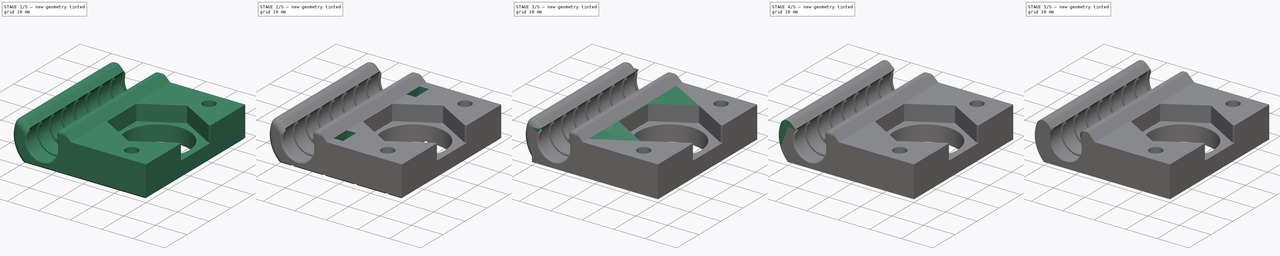
[diagram: build sequence overview — one tinted view per stage of 5, left to right]
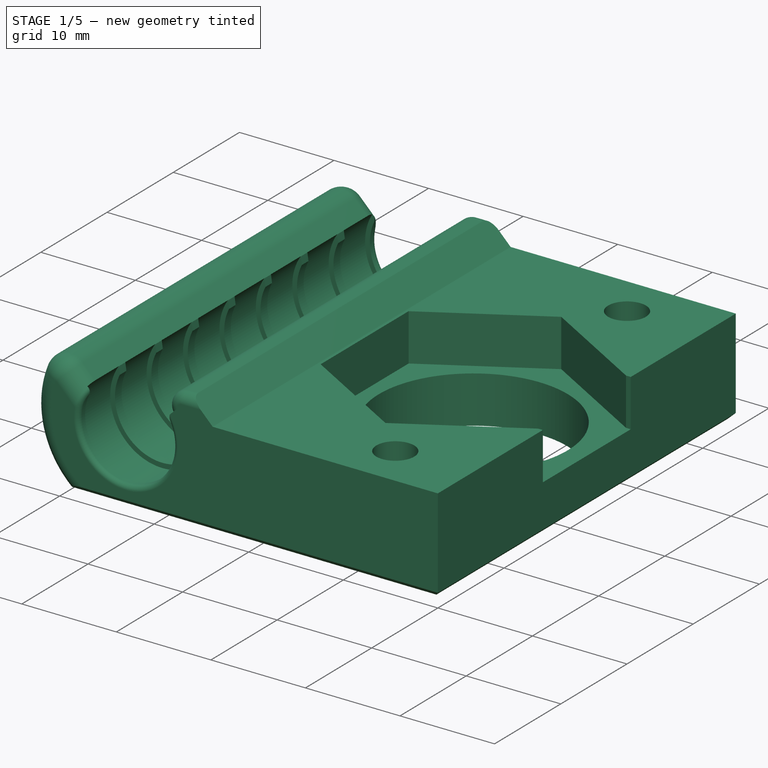
[diagram: stage 1 of 5 — iso view after this stage's code; geometry added in this stage tinted green]
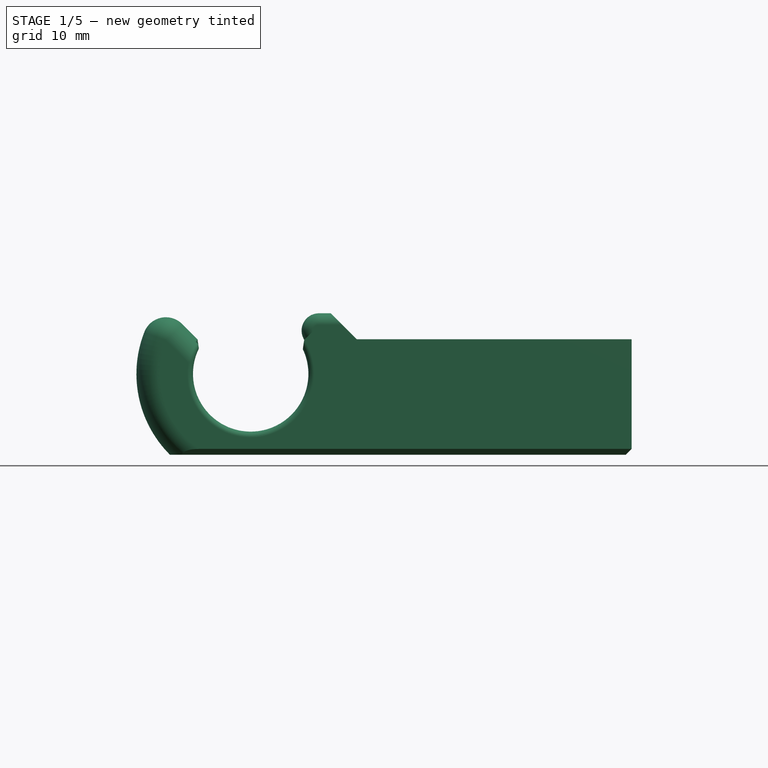
[diagram: stage 1 of 5 — front view after this stage's code; geometry added in this stage tinted green]
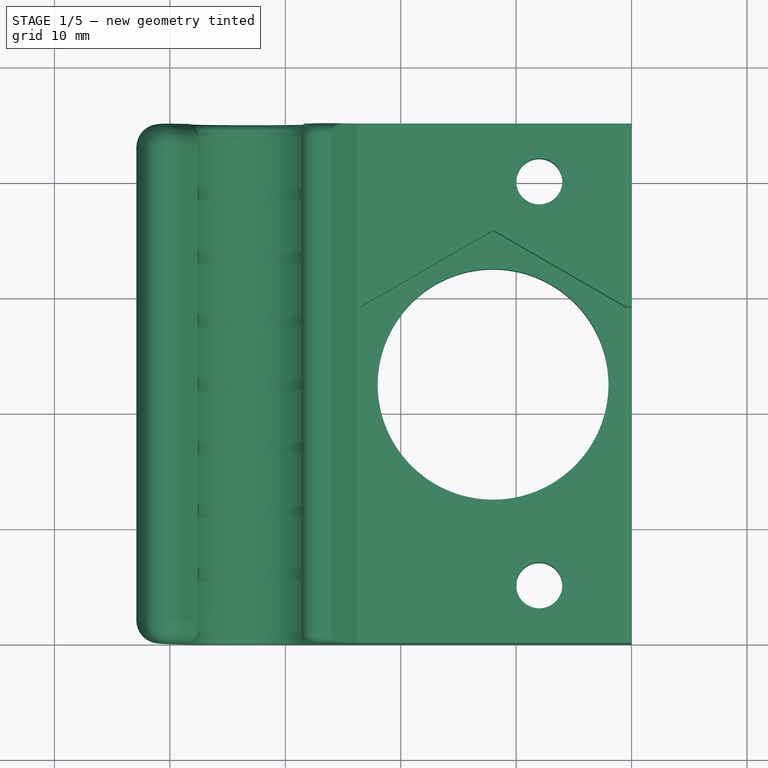
[diagram: stage 1 of 5 — top view after this stage's code; geometry added in this stage tinted green]
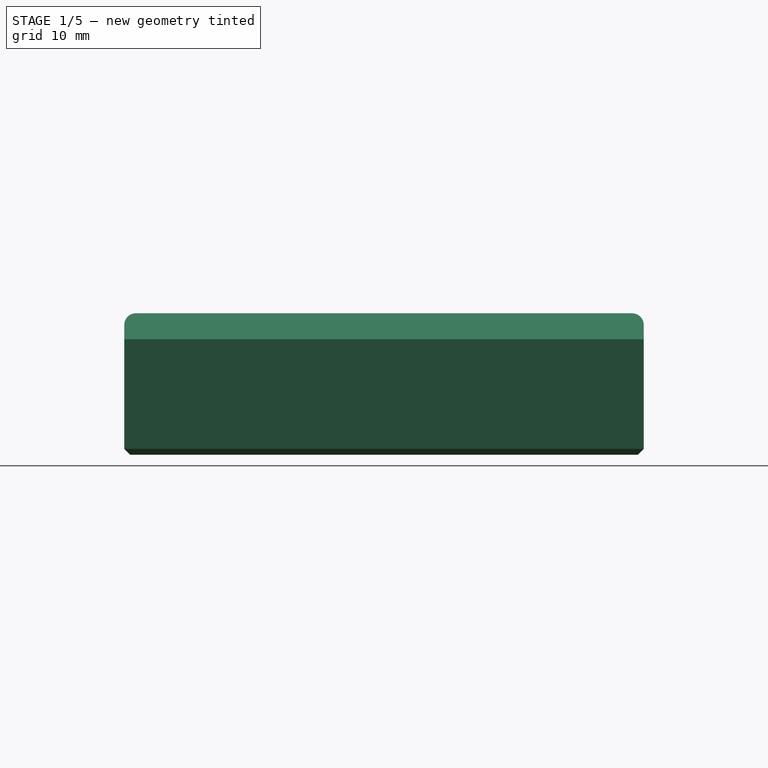
[diagram: stage 1 of 5 — right view after this stage's code; geometry added in this stage tinted green]
FCSTD DOCUMENT  (FreeCAD 0.16R5861 (Git))
Label: z-min_switch_mount_v4.1
License: All rights reserved
LicenseURL: http://en.wikipedia.org/wiki/All_rights_reserved
objects: Sketcher::SketchObject×10, PartDesign::Fillet×7, PartDesign::Pocket×6, PartDesign::Pad×4, PartDesign::Chamfer×4, PartDesign::LinearPattern×2, Part::Feature×1
note: 44 computed .brp shape members not serialized (recipe doc carries the construction recipe); baked Part::Feature solids carry a one-line shape summary decoded from their .brp

FEATURE [Part::Feature] Chamfer001001  label="Chamfer002"
  shape: bbox 42.9 x 45.09 x 12.25 mm, 84 faces (baked)
FEATURE [PartDesign::Chamfer] Chamfer001002
  Base = -> Chamfer001001 [Edge59,Edge57,Edge58]
  Size = 0.5
FEATURE [PartDesign::Fillet] Fillet003
  Base = -> Chamfer001002 [Edge1,Edge5]
  Radius = 2
FEATURE [PartDesign::Fillet] Fillet004
  Base = -> Fillet003 [Edge67,Edge78]
  Radius = 1
FEATURE [PartDesign::Fillet] Fillet005
  Base = -> Fillet004 [Edge68,Edge12]
  Radius = 0.5
FEATURE [Sketcher::SketchObject] Sketch007
  ExternalGeometry = -> [Fillet005]
  Placement = pos=(0,0,0) rot=(1,0,0;3.14159rad)
  Support = -> Fillet005 [Face19]
  sketch-geometry (2):
    g0: Circle CenterX=32 CenterY=-5 CenterZ=0 NormalX=0 NormalY=0 NormalZ=1 Radius=4
    g1: Circle CenterX=32 CenterY=-40 CenterZ=0 NormalX=0 NormalY=0 NormalZ=1 Radius=4
  constraints (4):
    c: Coincident(g0,g-3)
    c: Coincident(g1,g-5)
    c: Equal(g1,g-5)
    c: Equal(g-5,g0)
FEATURE [PartDesign::Pocket] Pocket003
  Length = 4
  Sketch = -> Sketch007
  Type = 0
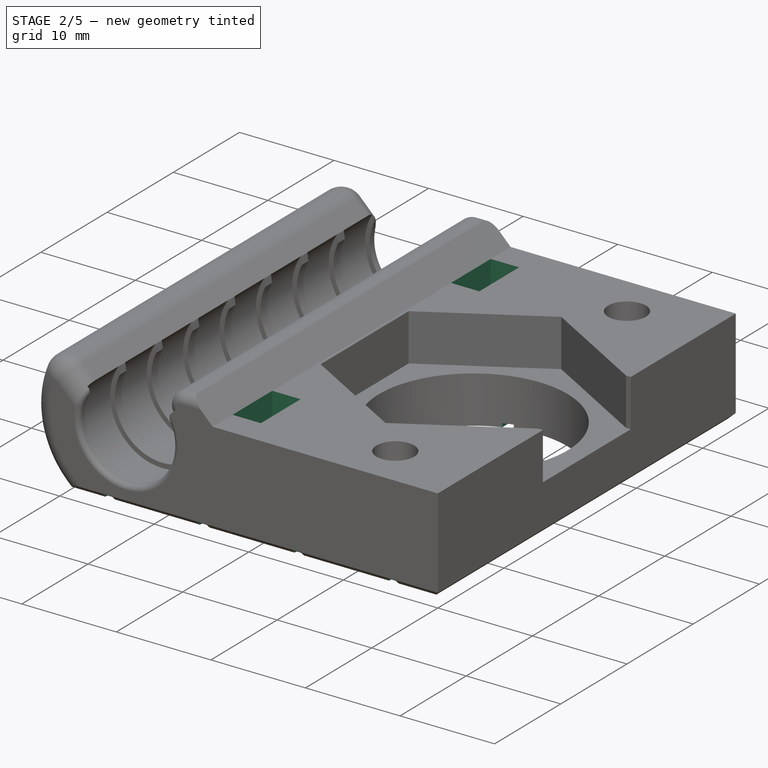
[diagram: stage 2 of 5 — iso view after this stage's code; geometry added in this stage tinted green]
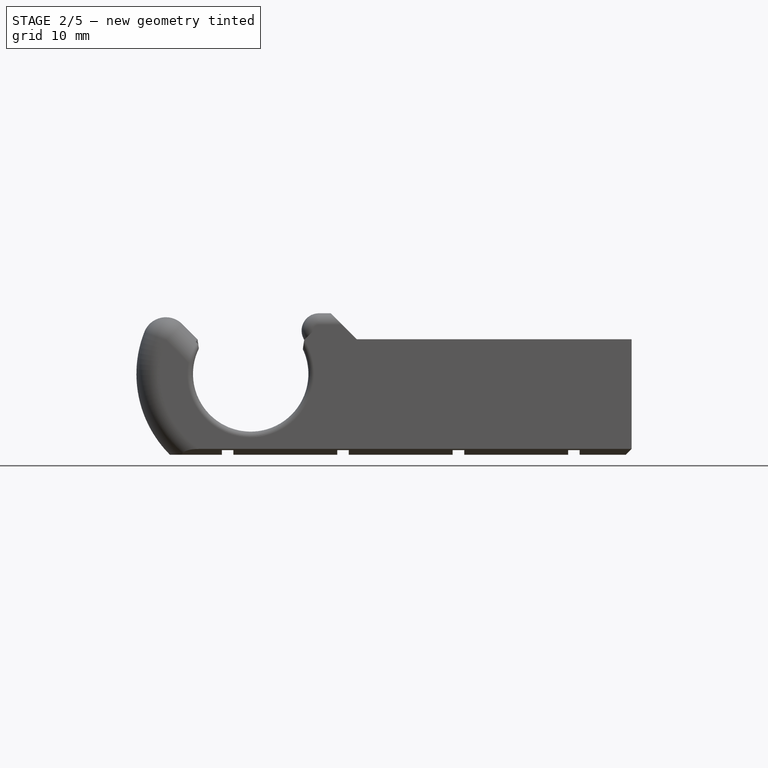
[diagram: stage 2 of 5 — front view after this stage's code; geometry added in this stage tinted green]
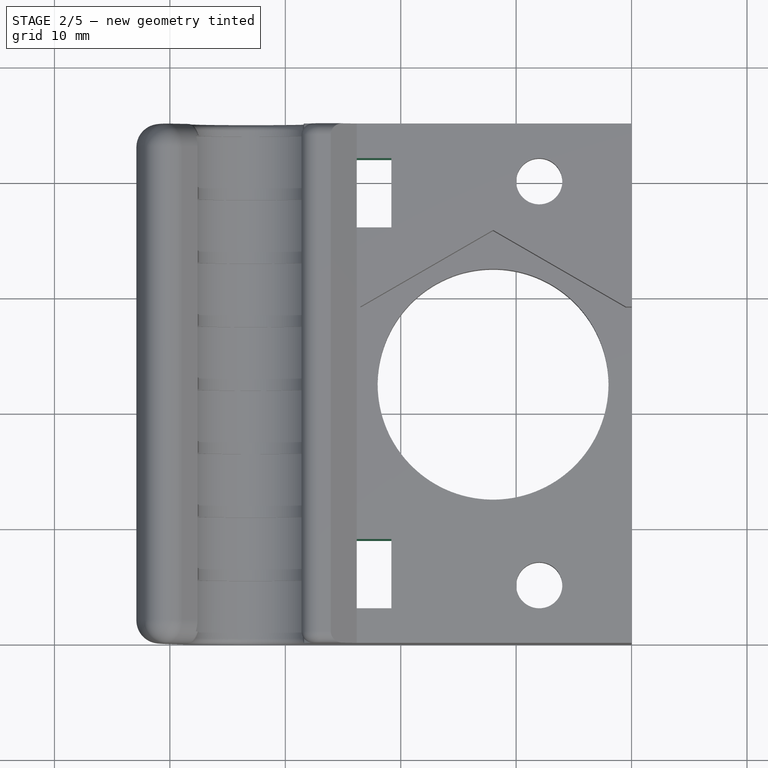
[diagram: stage 2 of 5 — top view after this stage's code; geometry added in this stage tinted green]
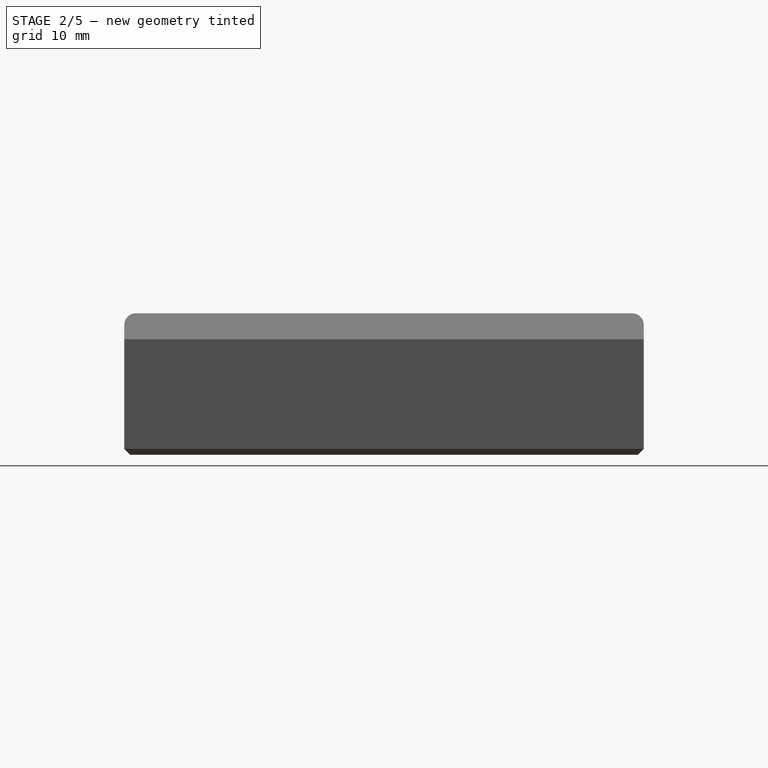
[diagram: stage 2 of 5 — right view after this stage's code; geometry added in this stage tinted green]
FEATURE [PartDesign::Chamfer] Chamfer001003
  Base = -> Pocket003 [Edge147,Edge149]
  Size = 1.99
FEATURE [Sketcher::SketchObject] Sketch008
  Placement = pos=(0,0,0) rot=(1,0,0;3.14159rad)
  Support = -> Chamfer001003 [Face36]
  sketch-geometry (4):
    g0: LineSegment StartX=5.5 StartY=0 StartZ=0 EndX=4.5 EndY=0 EndZ=0
    g1: LineSegment StartX=4.5 StartY=0 StartZ=0 EndX=4.5 EndY=-45 EndZ=0
    g2: LineSegment StartX=4.5 StartY=-45 StartZ=0 EndX=5.5 EndY=-45 EndZ=0
    g3: LineSegment StartX=5.5 StartY=-45 StartZ=0 EndX=5.5 EndY=0 EndZ=0
  constraints (12):
    c: Coincident(g0,g1)
    c: Coincident(g1,g2)
    c: Coincident(g2,g3)
    c: Coincident(g3,g0)
    c: Horizontal(g0)
    c: Horizontal(g2)
    c: Vertical(g1)
    c: Vertical(g3)
    c: PointOnObject(g0,g-1)
    c: DistanceX(g0) = -1
    c: DistanceX(g-1,g0) = 4.5
    c: DistanceY(g1) = -45
FEATURE [PartDesign::Pocket] Pocket004
  Length = 0.4
  Sketch = -> Sketch008
  Type = 0
FEATURE [PartDesign::LinearPattern] LinearPattern001
  Direction = -> Sketch008 [H_Axis]
  Length = 30
  Occurrences = 4
  Originals = -> [Pocket004]
FEATURE [Sketcher::SketchObject] Sketch009
  ExternalGeometry = -> [LinearPattern001]
  Placement = pos=(0,0,10) rot=(0,0,1;0rad)
  Support = -> LinearPattern001 [Face3]
  sketch-geometry (8):
    g0: LineSegment StartX=16.1847 StartY=36 StartZ=0 EndX=19.1847 EndY=36 EndZ=0
    g1: LineSegment StartX=19.1847 StartY=36 StartZ=0 EndX=19.1847 EndY=42 EndZ=0
    g2: LineSegment StartX=19.1847 StartY=42 StartZ=0 EndX=16.1847 EndY=42 EndZ=0
    g3: LineSegment StartX=16.1847 StartY=42 StartZ=0 EndX=16.1847 EndY=36 EndZ=0
    g4: LineSegment StartX=16.1847 StartY=9 StartZ=0 EndX=19.1847 EndY=9 EndZ=0
    g5: LineSegment StartX=19.1847 StartY=9 StartZ=0 EndX=19.1847 EndY=3 EndZ=0
    g6: LineSegment StartX=19.1847 StartY=3 StartZ=0 EndX=16.1847 EndY=3 EndZ=0
    g7: LineSegment StartX=16.1847 StartY=3 StartZ=0 EndX=16.1847 EndY=9 EndZ=0
  constraints (24):
    c: Coincident(g0,g1)
    c: Coincident(g1,g2)
    c: Coincident(g2,g3)
    c: Coincident(g3,g0)
    c: Horizontal(g0)
    c: Horizontal(g2)
    c: Vertical(g1)
    c: Vertical(g3)
    c: PointOnObject(g0,g-7)
    c: Coincident(g4,g5)
    c: Coincident(g5,g6)
    c: Coincident(g6,g7)
    c: Coincident(g7,g4)
    c: Horizontal(g4)
    c: Horizontal(g6)
    c: Vertical(g5)
    c: Vertical(g7)
    c: PointOnObject(g4,g-7)
    c: Equal(g6,g0)
    c: Equal(g1,g5)
    c: DistanceY(g1) = 6
    c: DistanceX(g2) = -3
    c: DistanceY(g2,g-7) = 3
    c: DistanceY(g-7,g6) = 3
FEATURE [PartDesign::Pocket] Pocket005
  Length = 5
  Sketch = -> Sketch009
  Type = 1
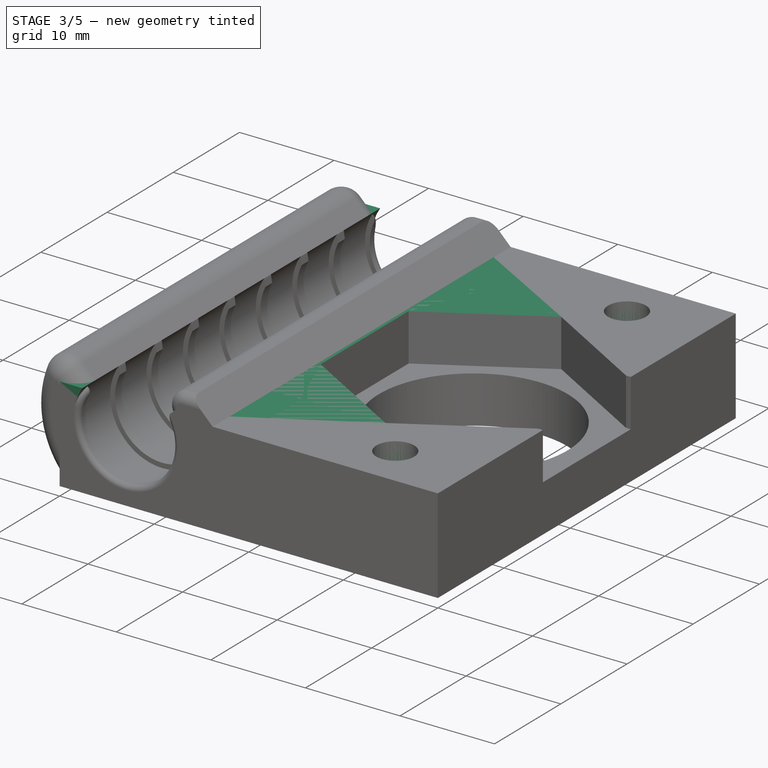
[diagram: stage 3 of 5 — iso view after this stage's code; geometry added in this stage tinted green]
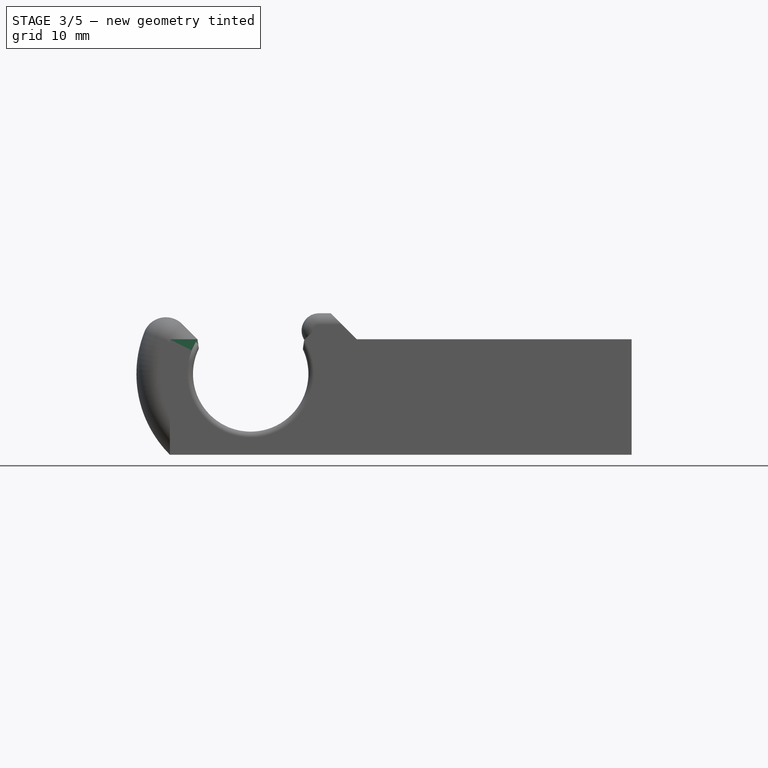
[diagram: stage 3 of 5 — front view after this stage's code; geometry added in this stage tinted green]
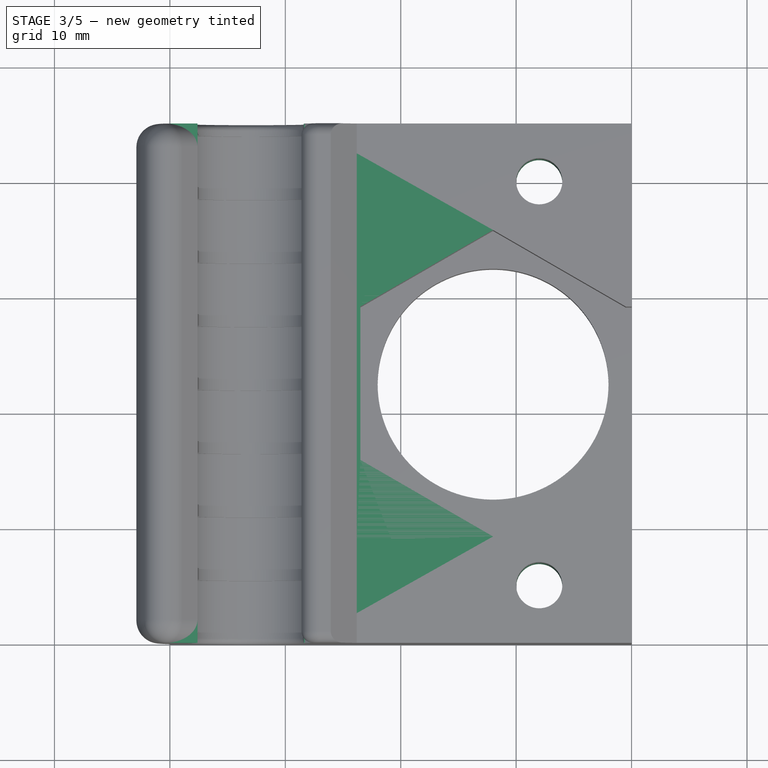
[diagram: stage 3 of 5 — top view after this stage's code; geometry added in this stage tinted green]
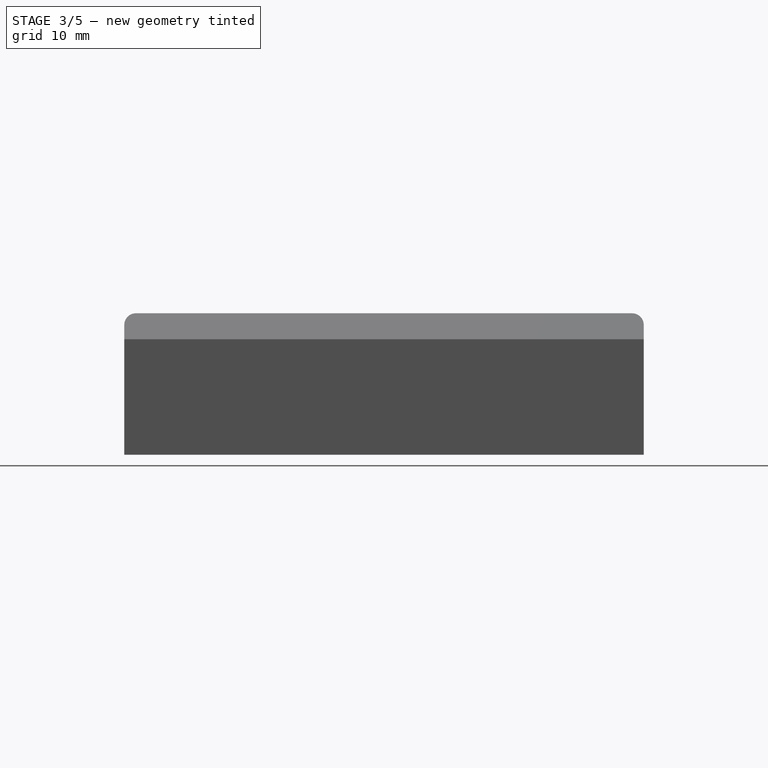
[diagram: stage 3 of 5 — right view after this stage's code; geometry added in this stage tinted green]
FEATURE [Sketcher::SketchObject] Sketch
  sketch-geometry (12):
    g0: LineSegment StartX=0 StartY=0 StartZ=0 EndX=40 EndY=0 EndZ=0
    g1: LineSegment StartX=40 StartY=0 StartZ=0 EndX=40 EndY=45 EndZ=0
    g2: LineSegment StartX=40 StartY=45 StartZ=0 EndX=0 EndY=45 EndZ=0
    g3: LineSegment StartX=0 StartY=45 StartZ=0 EndX=0 EndY=0 EndZ=0
    g4: Circle CenterX=28 CenterY=22.5 CenterZ=0 NormalX=0 NormalY=0 NormalZ=1 Radius=10
    g5: LineSegment [constr] StartX=40 StartY=45 StartZ=0 EndX=28 EndY=22.5 EndZ=0
    g6: LineSegment [constr] StartX=28 StartY=22.5 StartZ=0 EndX=40 EndY=0 EndZ=0
    g7: LineSegment [constr] StartX=40 StartY=45 StartZ=0 EndX=32 EndY=40 EndZ=0
    g8: LineSegment [constr] StartX=32 StartY=40 StartZ=0 EndX=32 EndY=5 EndZ=0
    g9: LineSegment [constr] StartX=32 StartY=5 StartZ=0 EndX=40 EndY=0 EndZ=0
    g10: Circle CenterX=32 CenterY=40 CenterZ=0 NormalX=0 NormalY=0 NormalZ=1 Radius=2
    g11: Circle CenterX=32 CenterY=5 CenterZ=0 NormalX=0 NormalY=0 NormalZ=1 Radius=2
  constraints (30):
    c: Coincident(g0,g1)
    c: Coincident(g1,g2)
    c: Coincident(g2,g3)
    c: Coincident(g3,g0)
    c: Horizontal(g0)
    c: Horizontal(g2)
    c: Vertical(g1)
    c: Vertical(g3)
    c: Coincident(g0,g-1)
    c: DistanceY(g3) = -45
    c: DistanceX(g2) = -40
    c: Coincident(g1,g5)
    c: Coincident(g5,g4)
    c: Coincident(g5,g6)
    c: Coincident(g6,g0)
    c: Equal(g6,g5)
    c: Radius(g4) = 10
    c: DistanceX(g4,g1) = 12
    c: Coincident(g1,g7)
    c: Coincident(g7,g8)
    c: Vertical(g8)
    c: Coincident(g8,g9)
    c: Coincident(g9,g0)
    c: Equal(g9,g7)
    c: DistanceY(g8) = -35
    c: Coincident(g10,g7)
    c: Coincident(g11,g8)
    c: Equal(g11,g10)
    c: Radius(g10) = 2
    c: DistanceX(g8,g0) = 8
FEATURE [PartDesign::Pad] Pad
  Length = 10
  Length2 = 100
  Sketch = -> Sketch
  Type = 0
FEATURE [Sketcher::SketchObject] Sketch001
  Placement = pos=(0,0,0) rot=(1,0,0;1.5708rad)
  Support = -> Pad [Face1]
  sketch-geometry (1):
    g0: Circle CenterX=7 CenterY=7 CenterZ=0 NormalX=0 NormalY=0 NormalZ=1 Radius=5.5
  constraints (3):
    c: Radius(g0) = 5.5
    c: DistanceX(g0) = 7
    c: DistanceY(g0) = 7
FEATURE [PartDesign::Pocket] Pocket
  Length = 5
  Sketch = -> Sketch001
  Type = 1
FEATURE [Sketcher::SketchObject] Sketch002
  ExternalGeometry = -> [Pocket]
  Placement = pos=(0,0,10) rot=(0,0,1;0rad)
  Support = -> Pocket [Face4]
  sketch-geometry (7):
    g0: LineSegment StartX=39.5 StartY=29.1395 StartZ=0 EndX=28 EndY=35.7791 EndZ=0
    g1: LineSegment StartX=28 StartY=35.7791 StartZ=0 EndX=16.5 EndY=29.1395 EndZ=0
    g2: LineSegment StartX=16.5 StartY=29.1395 StartZ=0 EndX=16.5 EndY=15.8605 EndZ=0
    g3: LineSegment StartX=16.5 StartY=15.8605 StartZ=0 EndX=28 EndY=9.22094 EndZ=0
    g4: LineSegment StartX=28 StartY=9.22094 StartZ=0 EndX=39.5 EndY=15.8605 EndZ=0
    g5: LineSegment StartX=39.5 StartY=15.8605 StartZ=0 EndX=39.5 EndY=29.1395 EndZ=0
    g6: Circle [constr] CenterX=28 CenterY=22.5 CenterZ=0 NormalX=0 NormalY=0 NormalZ=1 Radius=13.2791
  constraints (16):
    c: Coincident(g0,g1)
    c: Coincident(g1,g2)
    c: Coincident(g2,g3)
    c: Coincident(g3,g4)
    c: Coincident(g4,g5)
    c: Coincident(g5,g0)
    c: Equal(g0, g1-g5) x5
    c: PointOnObject(g0,g6)
    c: PointOnObject(g1,g6)
    c: PointOnObject(g2,g6)
    c: PointOnObject(g3,g6)
    c: PointOnObject(g4,g6)
    c: PointOnObject(g5,g6)
    c: Coincident(g6,g-3)
    c: Vertical(g5)
    c: DistanceX(g2,g4) = 23
FEATURE [PartDesign::Pocket] Pocket001
  Length = 5
  Sketch = -> Sketch002
  Type = 0
FEATURE [Sketcher::SketchObject] Sketch003
  ExternalGeometry = -> [Pocket001]
  Placement = pos=(0,0,10) rot=(0,0,1;0rad)
  Support = -> Pocket001 [Face4]
  sketch-geometry (4):
    g0: LineSegment StartX=39.5 StartY=29.1395 StartZ=0 EndX=41.5 EndY=29.1395 EndZ=0
    g1: LineSegment StartX=41.5 StartY=29.1395 StartZ=0 EndX=41.5 EndY=15.8605 EndZ=0
    g2: LineSegment StartX=41.5 StartY=15.8605 StartZ=0 EndX=39.5 EndY=15.8605 EndZ=0
    g3: LineSegment StartX=39.5 StartY=15.8605 StartZ=0 EndX=39.5 EndY=29.1395 EndZ=0
  constraints (11):
    c: Coincident(g0,g1)
    c: Coincident(g1,g2)
    c: Coincident(g2,g3)
    c: Coincident(g3,g0)
    c: Horizontal(g0)
    c: Horizontal(g2)
    c: Vertical(g1)
    c: Vertical(g3)
    c: Coincident(g0,g-3)
    c: Coincident(g-3,g2)
    c: DistanceX(g0) = 2
FEATURE [PartDesign::Pocket] Pocket002
  Length = 5
  Sketch = -> Sketch003
  Type = 0
FEATURE [PartDesign::Fillet] Fillet006
  Base = -> Pocket005 [Edge172,Edge171]
  Radius = 0.7
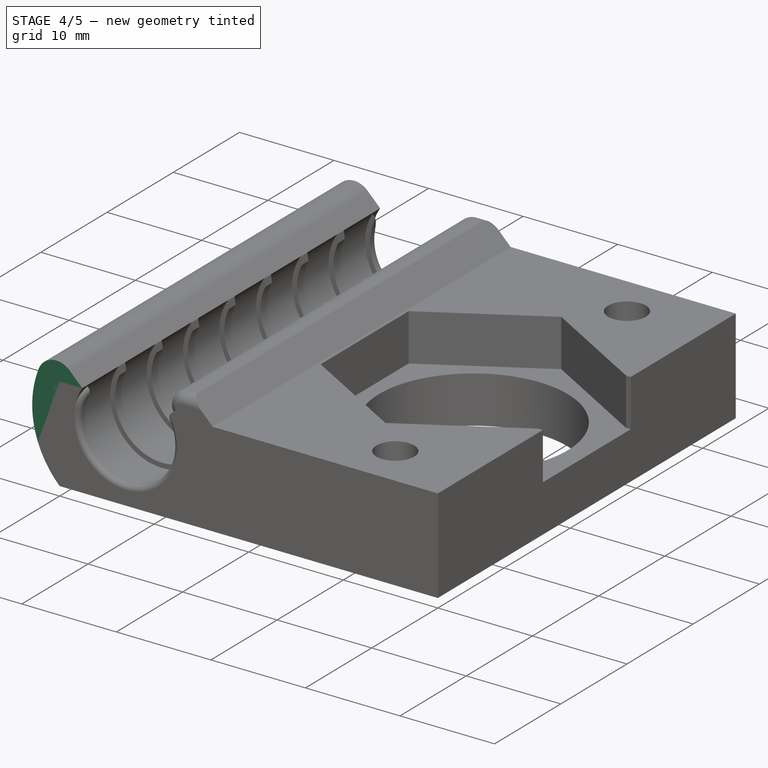
[diagram: stage 4 of 5 — iso view after this stage's code; geometry added in this stage tinted green]
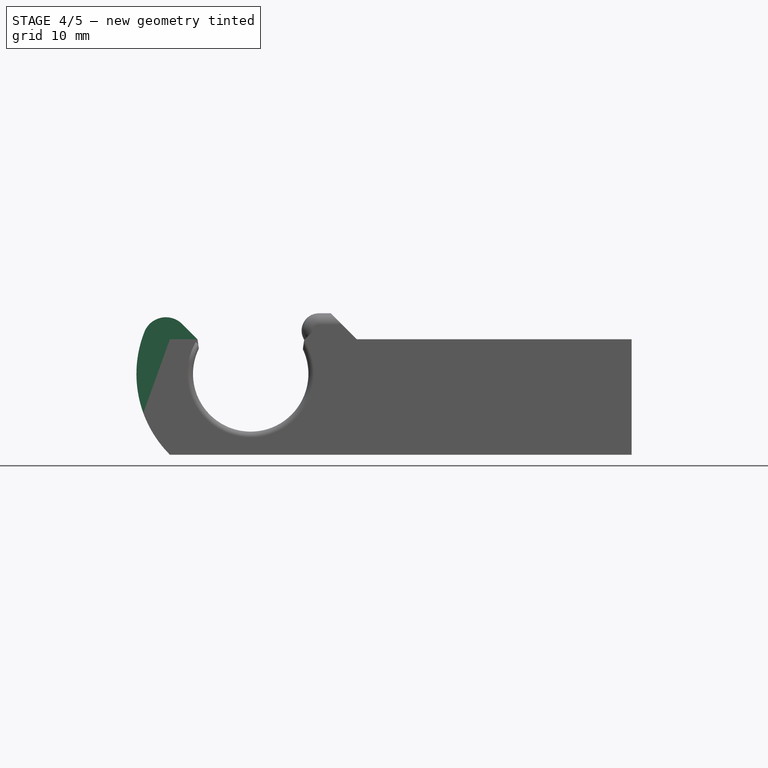
[diagram: stage 4 of 5 — front view after this stage's code; geometry added in this stage tinted green]
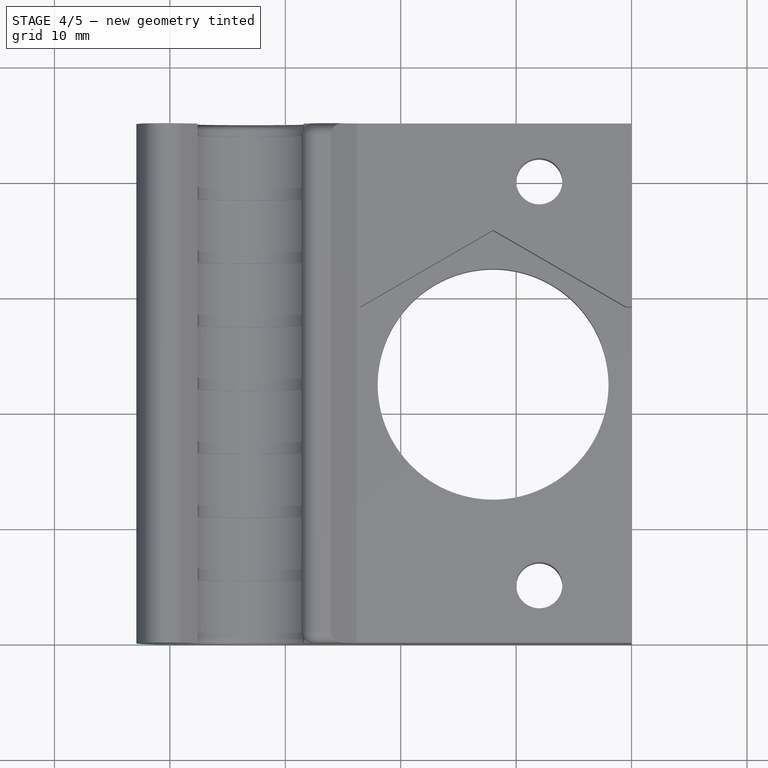
[diagram: stage 4 of 5 — top view after this stage's code; geometry added in this stage tinted green]
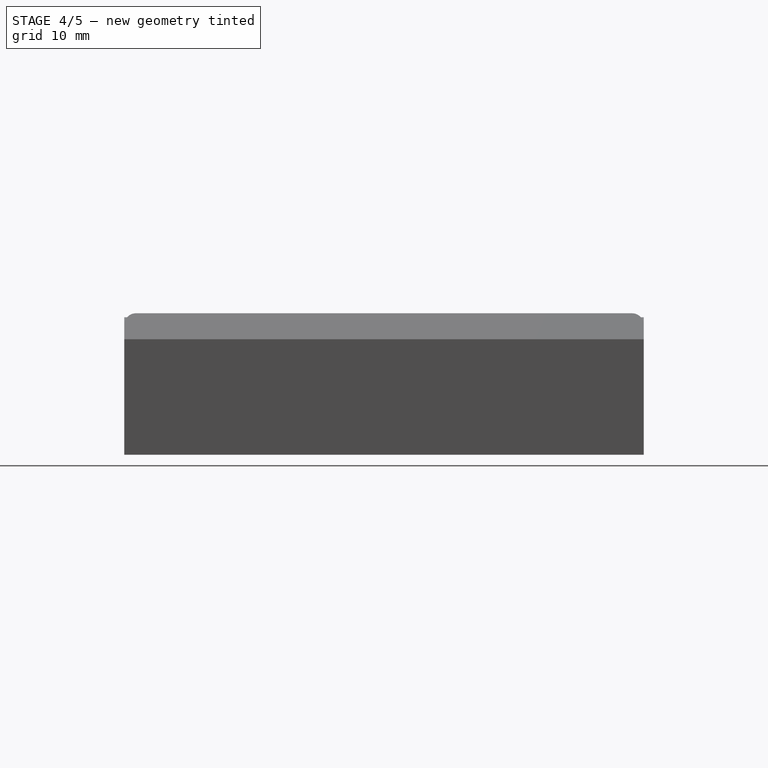
[diagram: stage 4 of 5 — right view after this stage's code; geometry added in this stage tinted green]
FEATURE [PartDesign::Chamfer] Chamfer
  Base = -> Pocket002 [Edge13,Edge12]
  Size = 2
FEATURE [Sketcher::SketchObject] Sketch004
  ExternalGeometry = -> [Chamfer]
  Placement = pos=(0,0,0) rot=(1,0,0;1.5708rad)
  Support = -> Chamfer [Face3]
  sketch-geometry (4):
    g0: ArcOfCircle CenterX=7 CenterY=7 CenterZ=0 NormalX=0 NormalY=0 NormalZ=1 Radius=9.89949 StartAngle=2.47143 EndAngle=3.92699
    g1: LineSegment StartX=-0.758458 StartY=13.1487 StartZ=0 EndX=2.39023 EndY=10 EndZ=0
    g2: LineSegment StartX=2.39023 StartY=10 StartZ=0 EndX=0.787398 EndY=9 EndZ=0
    g3: LineSegment StartX=0.787398 StartY=9 StartZ=0 EndX=0 EndY=0 EndZ=0
  constraints (10):
    c: Coincident(g0,g-3)
    c: Coincident(g0,g-1)
    c: Coincident(g1,g0)
    c: Coincident(g1,g-3)
    c: Angle(g1,g-1) = 0.785398
    c: Coincident(g2,g1)
    c: Coincident(g3,g2)
    c: Coincident(g3,g-1)
    c: Angle(g3,g-2) = 0.0872665
    c: DistanceY(g-1,g2) = 9
FEATURE [PartDesign::Pad] Pad001
  Length = 45
  Length2 = 100
  Reversed = true
  Sketch = -> Sketch004
  Type = 0
FEATURE [PartDesign::Fillet] Fillet
  Base = -> Pad001 [Edge40]
  Radius = 2
FEATURE [PartDesign::Fillet] Fillet001
  Base = -> Fillet [Edge52]
  Radius = 1
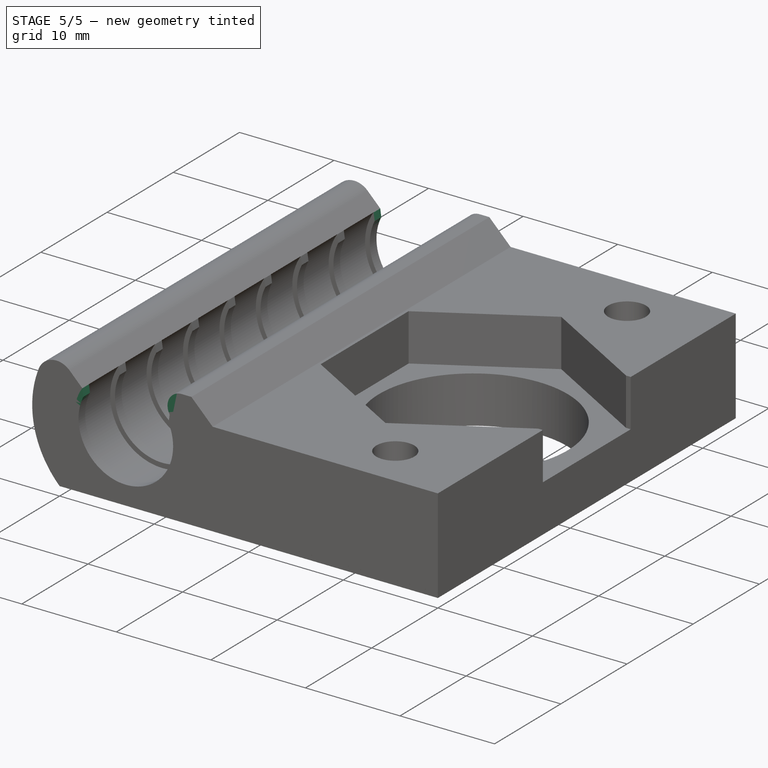
[diagram: stage 5 of 5 — iso view after this stage's code; geometry added in this stage tinted green]
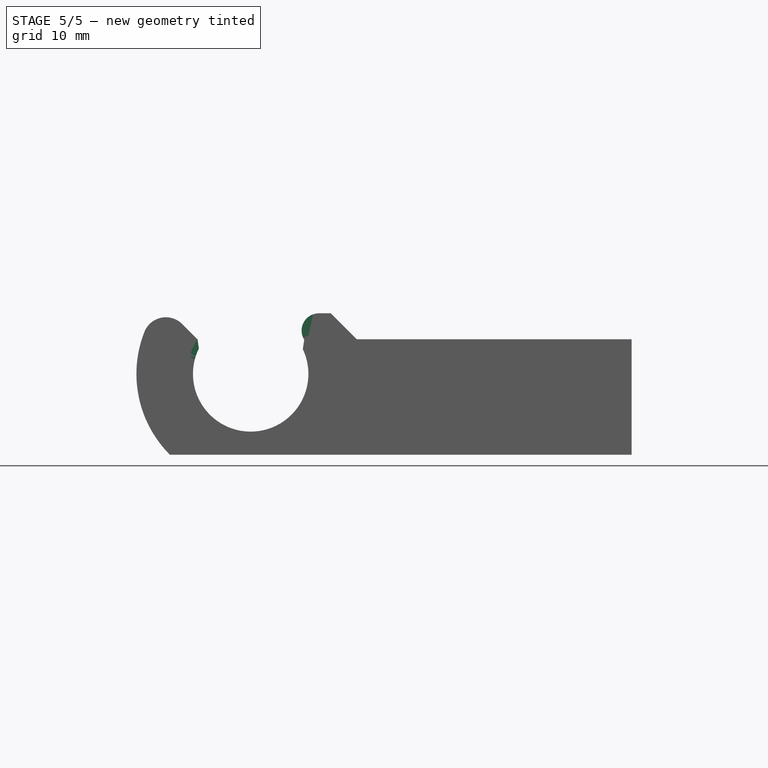
[diagram: stage 5 of 5 — front view after this stage's code; geometry added in this stage tinted green]
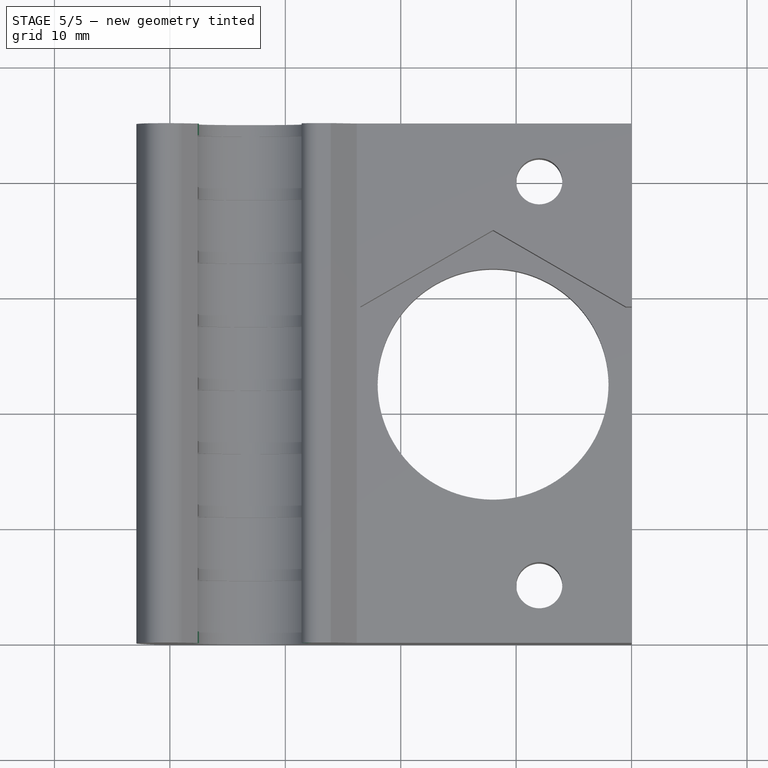
[diagram: stage 5 of 5 — top view after this stage's code; geometry added in this stage tinted green]
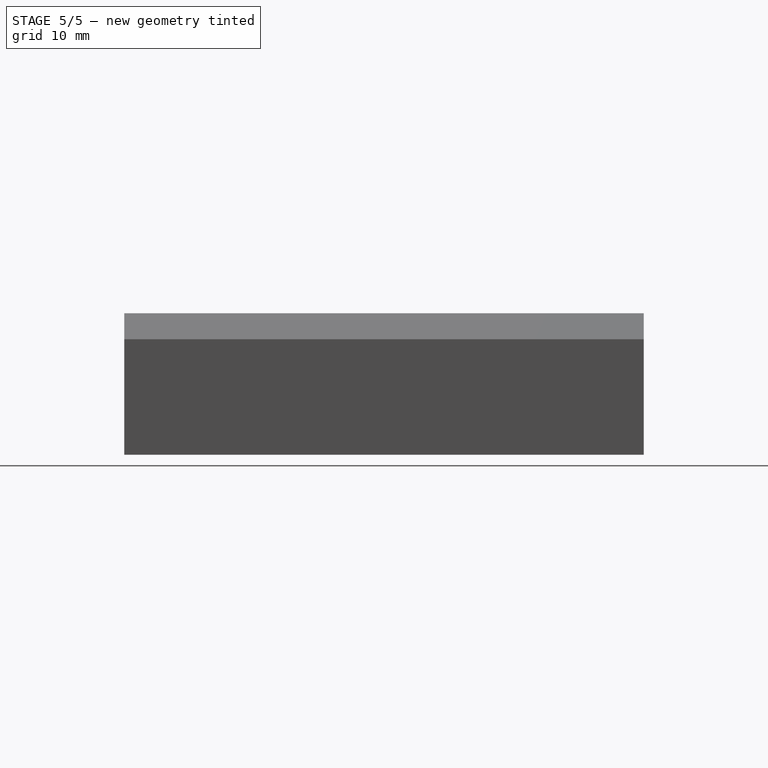
[diagram: stage 5 of 5 — right view after this stage's code; geometry added in this stage tinted green]
FEATURE [Sketcher::SketchObject] Sketch005
  ExternalGeometry = -> [Fillet001]
  Placement = pos=(0,0,0) rot=(1,0,0;1.5708rad)
  Support = -> Fillet001 [Face1]
  sketch-geometry (4):
    g0: ArcOfCircle CenterX=7 CenterY=7 CenterZ=0 NormalX=0 NormalY=0 NormalZ=1 Radius=5.5 StartAngle=0 EndAngle=1.26813
    g1: LineSegment StartX=8.63936 StartY=12.25 StartZ=0 EndX=13.9347 EndY=12.25 EndZ=0
    g2: LineSegment StartX=13.9347 StartY=12.25 StartZ=0 EndX=16.1847 EndY=10 EndZ=0
    g3: LineSegment StartX=16.1847 StartY=10 StartZ=0 EndX=12.5 EndY=7 EndZ=0
  constraints (11):
    c: Coincident(g0,g-3)
    c: Coincident(g0,g-3)
    c: Coincident(g0,g1)
    c: Coincident(g1,g2)
    c: PointOnObject(g2,g-4)
    c: Coincident(g2,g3)
    c: Coincident(g3,g0)
    c: Horizontal(g1)
    c: Angle(g2,g-4) = 0.785398
    c: DistanceY(g1,g-4) = -2.25
    c: DistanceX(g2,g-4) = -3
FEATURE [PartDesign::Pad] Pad002
  Length = 45
  Length2 = 100
  Reversed = true
  Sketch = -> Sketch005
  Type = 0
FEATURE [PartDesign::Fillet] Fillet002
  Base = -> Pad002 [Edge1]
  Radius = 1.5
FEATURE [Sketcher::SketchObject] Sketch006
  ExternalGeometry = -> [Fillet002]
  Placement = pos=(0,0,0) rot=(1,0,0;1.5708rad)
  Support = -> Fillet002 [Face11]
  sketch-geometry (4):
    g0: ArcOfCircle CenterX=7 CenterY=7 CenterZ=0 NormalX=0 NormalY=0 NormalZ=1 Radius=5 StartAngle=2.58586 EndAngle=6.82611
    g1: ArcOfCircle CenterX=7 CenterY=7 CenterZ=0 NormalX=0 NormalY=0 NormalZ=1 Radius=6 StartAngle=2.54706 EndAngle=6.86714
    g2: LineSegment StartX=11.281 StartY=9.58323 StartZ=0 EndX=12.0057 EndY=10.308 EndZ=0
    g3: LineSegment StartX=2.75242 StartY=9.63781 StartZ=0 EndX=2.02952 EndY=10.3607 EndZ=0
  constraints (12):
    c: Coincident(g0,g-4)
    c: Coincident(g1,g0)
    c: Coincident(g2,g0)
    c: Coincident(g2,g1)
    c: Coincident(g3,g0)
    c: Coincident(g3,g1)
    c: PointOnObject(g-4,g3)
    c: PointOnObject(g-5,g2)
    c: Radius(g0) = 5
    c: Radius(g1) = 6
    c: Perpendicular(g2,g3)
    c: Angle(g3,g-1) = 0.785398
FEATURE [PartDesign::Pad] Pad003
  Length = 1
  Length2 = 100
  Reversed = true
  Sketch = -> Sketch006
  Type = 0
FEATURE [PartDesign::LinearPattern] LinearPattern
  Direction = -> Pad003 [Edge19]
  Length = 44
  Occurrences = 9
  Originals = -> [Pad003]
FEATURE [PartDesign::Chamfer] Chamfer001
  Base = -> LinearPattern [Edge1,Edge208,Edge222,Edge236,Edge250,Edge246,Edge232,Edge218,Edge204,Edge2,Edge103,Edge115,Edge127,Edge139,Edge136,Edge124,Edge112,Edge100]
  Size = 0.5
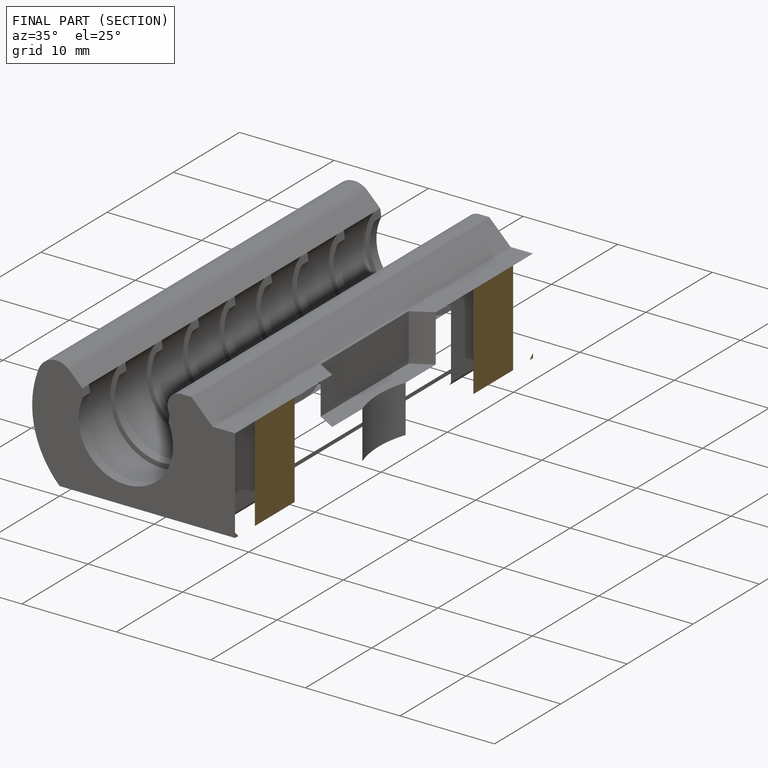
[diagram: finished part — half-section view (interior)]
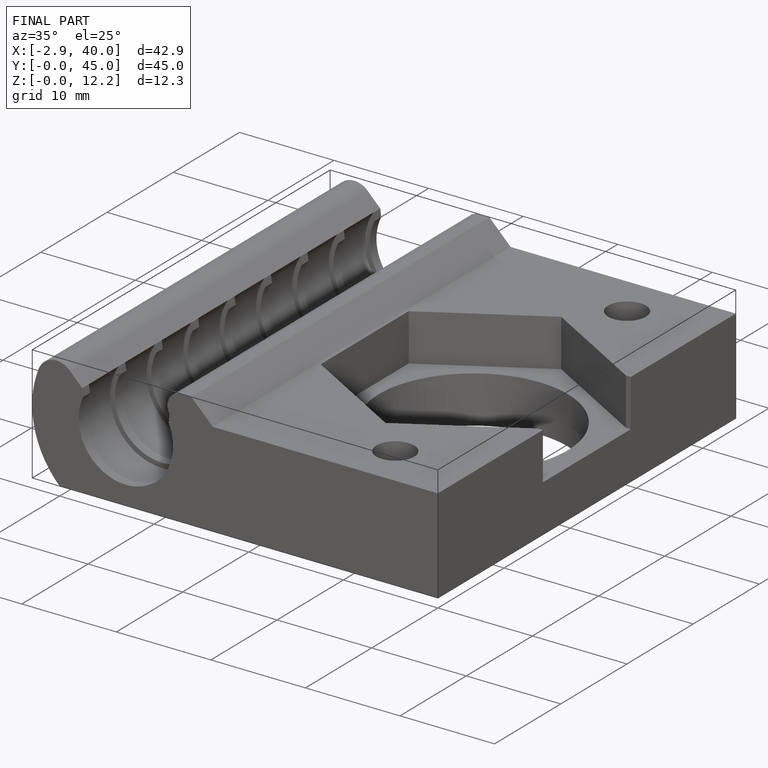
[diagram: finished part — iso view with bounding-box wireframe]
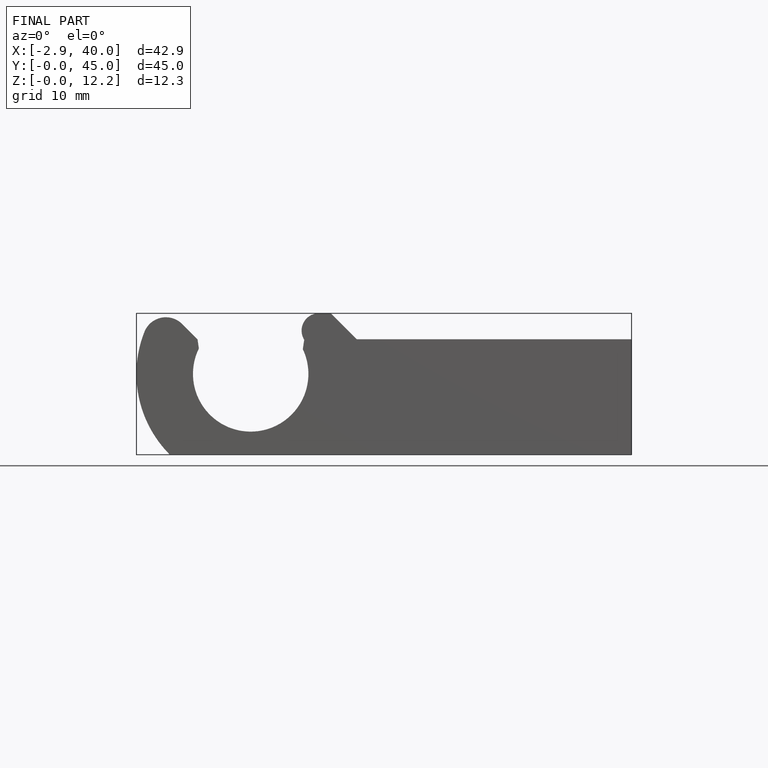
[diagram: finished part — front view with bounding-box wireframe]
